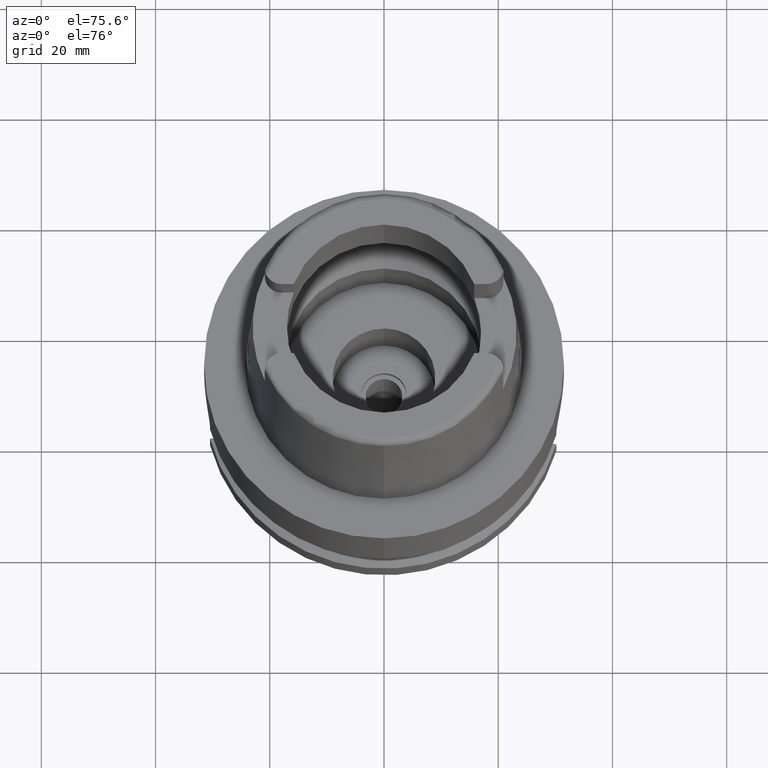
[diagram: clean part render]
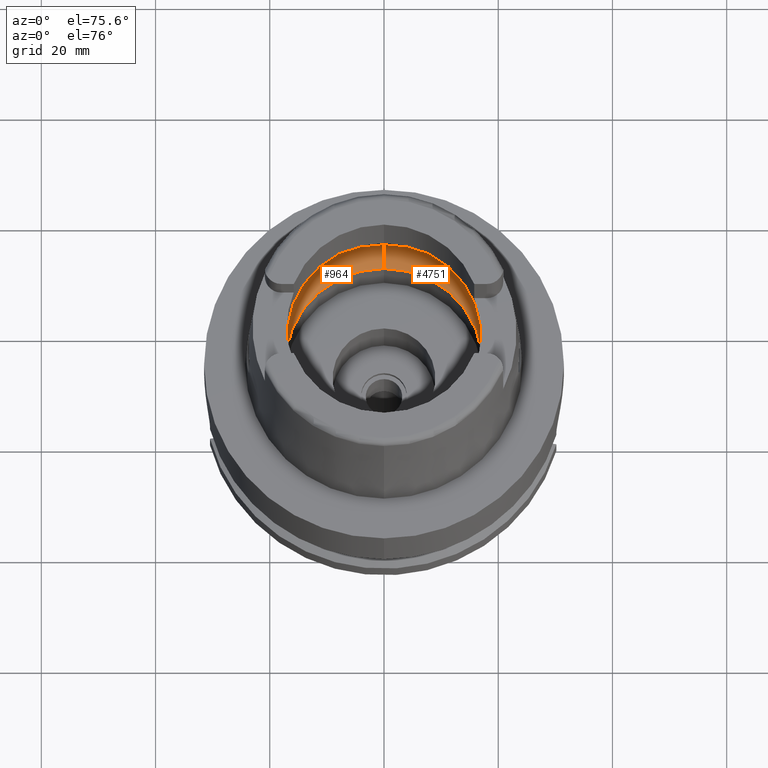
[diagram: same view with one multi-face feature highlighted, each face labeled with its STEP entity id]
A machine part, auxiliary view. The highlighted faces form ONE feature: a constant-radius fillet chain: 2 tangent blend faces with common blend radius 8 mm. The faces share edges in the B-rep.
Their STEP definitions:
[1] entity #4751 (Torus):
#158 = CARTESIAN_POINT ( 'NONE',  ( 19.88059069913697741, 2.158394907212094260, 5.925188472888706315 ) ) ;
#163 = DIRECTION ( 'NONE',  ( 0.0000000000000000000, -1.000000000000000000, 0.0000000000000000000 ) ) ;
#180 = CARTESIAN_POINT ( 'NONE',  ( 19.92591877051987836, -1.321591573237128836, 5.490590281197457401 ) ) ;
#312 = VERTEX_POINT ( 'NONE', #3746 ) ;
#391 = DIRECTION ( 'NONE',  ( 0.0000000000000000000, 0.0000000000000000000, -1.000000000000000000 ) ) ;
#467 = DIRECTION ( 'NONE',  ( 0.0000000000000000000, 0.6562500000000006661, -0.7545435292281016393 ) ) ;
#483 = DIRECTION ( 'NONE',  ( 0.0000000000000000000, 1.000000000000000000, 0.0000000000000000000 ) ) ;
#505 = AXIS2_PLACEMENT_3D ( 'NONE', #2756, #4456, #163 ) ;
#865 = EDGE_CURVE ( 'NONE', #1683, #3936, #3848, .T. ) ;
#933 = DIRECTION ( 'NONE',  ( 0.0000000000000000000, -1.000000000000000000, 0.0000000000000000000 ) ) ;
#955 = CARTESIAN_POINT ( 'NONE',  ( 19.91820208730433706, 1.528663205432394978, 5.574770377084123929 ) ) ;
#968 = B_SPLINE_CURVE_WITH_KNOTS ( 'NONE', 3,
 ( #1377, #3611, #158, #1436, #3989, #4817, #955, #3177, #4875, #2282, #1896, #1011, #2750, #4450, #3635 ),
 .UNSPECIFIED., .F., .F.,
 ( 4, 2, 2, 1, 1, 1, 2, 2, 4 ),
 ( 0.0000000000000000000, 0.2499999999999977796, 0.3749999999999970024, 0.4374999999999967248, 0.4687499999999964473, 0.4843749999999962252, 0.4921874999999961142, 0.4999999999999960032, 1.000000000000000000 ),
 .UNSPECIFIED. ) ;
#1011 = CARTESIAN_POINT ( 'NONE',  ( 19.92547292124043068, 1.334858430820499153, 5.495617893788070418 ) ) ;
#1059 = CARTESIAN_POINT ( 'NONE',  ( 19.93292615230356191, -1.081461345981616917, 5.408921120519437409 ) ) ;
#1094 = AXIS2_PLACEMENT_3D ( 'NONE', #2277, #3575, #467 ) ;
#1185 = VERTEX_POINT ( 'NONE', #3796 ) ;
#1307 = ORIENTED_EDGE ( 'NONE', *, *, #5604, .F. ) ;
#1323 = CARTESIAN_POINT ( 'NONE',  ( 19.84575864665999845, 2.479085262491000030, 6.186348233825000875 ) ) ;
#1370 = EDGE_CURVE ( 'NONE', #1683, #312, #1689, .T. ) ;
#1377 = CARTESIAN_POINT ( 'NONE',  ( 19.84575864665999845, 2.479085262491000030, 6.186348233825000875 ) ) ;
#1382 = CIRCLE ( 'NONE', #2841, 20.00000000000000000 ) ;
#1408 = AXIS2_PLACEMENT_3D ( 'NONE', #3971, #5176, #2262 ) ;
#1436 = CARTESIAN_POINT ( 'NONE',  ( 19.90056963212105856, 1.871013146672793503, 5.748159224275968704 ) ) ;
#1516 = CARTESIAN_POINT ( 'NONE',  ( 19.92706151929149172, -1.286760697311716051, 5.477637534686877530 ) ) ;
#1683 = VERTEX_POINT ( 'NONE', #3472 ) ;
#1689 = CIRCLE ( 'NONE', #505, 17.25000000000000000 ) ;
#1794 = DIRECTION ( 'NONE',  ( 0.0000000000000000000, 0.0000000000000000000, -1.000000000000000000 ) ) ;
#1856 = VERTEX_POINT ( 'NONE', #4431 ) ;
#1896 = CARTESIAN_POINT ( 'NONE',  ( 19.92518065070698441, 1.343443539030370948, 5.498897323770085777 ) ) ;
#2038 = EDGE_CURVE ( 'NONE', #1185, #3936, #2102, .T. ) ;
#2102 = CIRCLE ( 'NONE', #3367, 20.00000000000001421 ) ;
#2223 = CARTESIAN_POINT ( 'NONE',  ( 0.0000000000000000000, 0.0000000000000000000, 6.186348233825000875 ) ) ;
#2262 = DIRECTION ( 'NONE',  ( 0.0000000000000000000, -0.6562500000000006661, -0.7545435292281016393 ) ) ;
#2277 = CARTESIAN_POINT ( 'NONE',  ( 0.0000000000000000000, 12.00000000000000000, 6.186348233825000875 ) ) ;
#2282 = CARTESIAN_POINT ( 'NONE',  ( 19.92467892137705832, 1.357954799800392465, 5.504500142502393167 ) ) ;
#2312 = VERTEX_POINT ( 'NONE', #1323 ) ;
#2464 = CARTESIAN_POINT ( 'NONE',  ( 19.92840569443704624, -1.244197915450328651, 5.462253908760470011 ) ) ;
#2510 = ORIENTED_EDGE ( 'NONE', *, *, #865, .T. ) ;
#2619 = CARTESIAN_POINT ( 'NONE',  ( 0.0000000000000000000, 0.0000000000000000000, 6.186348233825000875 ) ) ;
#2750 = CARTESIAN_POINT ( 'NONE',  ( 19.93856764937210002, 0.9457748455385684982, 5.348171637975688064 ) ) ;
#2755 = ORIENTED_EDGE ( 'NONE', *, *, #2038, .F. ) ;
#2756 = CARTESIAN_POINT ( 'NONE',  ( 0.0000000000000000000, 0.0000000000000000000, 0.1500000000000999700 ) ) ;
#2764 = AXIS2_PLACEMENT_3D ( 'NONE', #4313, #391, #933 ) ;
#2828 = CARTESIAN_POINT ( 'NONE',  ( 19.94501428475999560, -0.2479294248916112386, 5.249999999999997335 ) ) ;
#2831 = CIRCLE ( 'NONE', #1094, 7.999999999999992895 ) ;
#2841 = AXIS2_PLACEMENT_3D ( 'NONE', #2619, #4315, #483 ) ;
#2973 = EDGE_CURVE ( 'NONE', #312, #2986, #2831, .T. ) ;
#2986 = VERTEX_POINT ( 'NONE', #5276 ) ;
#3097 = EDGE_CURVE ( 'NONE', #1856, #1185, #5534, .T. ) ;
#3177 = CARTESIAN_POINT ( 'NONE',  ( 19.92208759317466615, 1.429891859894064865, 5.533074159368561062 ) ) ;
#3226 = CARTESIAN_POINT ( 'NONE',  ( 19.94340253376580563, -0.4848958549396773510, 5.274596266894434393 ) ) ;
#3356 = ORIENTED_EDGE ( 'NONE', *, *, #3097, .F. ) ;
#3367 = AXIS2_PLACEMENT_3D ( 'NONE', #2223, #1794, #3523 ) ;
#3472 = CARTESIAN_POINT ( 'NONE',  ( 0.0000000000000000000, -17.25000000000000000, 0.1500000000000999700 ) ) ;
#3523 = DIRECTION ( 'NONE',  ( 0.9922879323327794543, -0.1239542631244973381, 0.0000000000000000000 ) ) ;
#3539 = EDGE_LOOP ( 'NONE', ( #1307, #4185, #4494, #4726, #2510, #2755, #3356 ) ) ;
#3575 = DIRECTION ( 'NONE',  ( 1.000000000000000000, 0.0000000000000000000, 0.0000000000000000000 ) ) ;
#3611 = CARTESIAN_POINT ( 'NONE',  ( 19.86454025209263818, 2.328733350789459422, 6.053874409961051306 ) ) ;
#3635 = CARTESIAN_POINT ( 'NONE',  ( 19.94501428475999916, 0.0000000000000000000, 5.250000000000000000 ) ) ;
#3661 = EDGE_CURVE ( 'NONE', #2986, #2312, #1382, .T. ) ;
#3703 = CARTESIAN_POINT ( 'NONE',  ( 19.92607463660266021, -1.316897531413870226, 5.488828948961343990 ) ) ;
#3731 = CARTESIAN_POINT ( 'NONE',  ( 19.92647127844888999, -1.304861539413693983, 5.484338238559522516 ) ) ;
#3746 = CARTESIAN_POINT ( 'NONE',  ( 0.0000000000000000000, 17.25000000000000000, 0.1500000000000999700 ) ) ;
#3796 = CARTESIAN_POINT ( 'NONE',  ( 19.84575864665999845, -2.479085262491000030, 6.186348233825000875 ) ) ;
#3839 = TOROIDAL_SURFACE ( 'NONE', #2764, 12.00000000000000000, 8.000000000000000000 ) ;
#3848 = CIRCLE ( 'NONE', #1408, 7.999999999999992895 ) ;
#3936 = VERTEX_POINT ( 'NONE', #4669 ) ;
#3971 = CARTESIAN_POINT ( 'NONE',  ( 0.0000000000000000000, -12.00000000000000000, 6.186348233825000875 ) ) ;
#3989 = CARTESIAN_POINT ( 'NONE',  ( 19.90654648685200812, 1.769930501895055741, 5.691839127009138188 ) ) ;
#4114 = CARTESIAN_POINT ( 'NONE',  ( 19.94501428475999916, 0.0000000000000000000, 5.250000000000000000 ) ) ;
#4185 = ORIENTED_EDGE ( 'NONE', *, *, #3661, .F. ) ;
#4313 = CARTESIAN_POINT ( 'NONE',  ( 0.0000000000000000000, 0.0000000000000000000, 6.186348233825000875 ) ) ;
#4315 = DIRECTION ( 'NONE',  ( 0.0000000000000000000, 0.0000000000000000000, -1.000000000000000000 ) ) ;
#4431 = CARTESIAN_POINT ( 'NONE',  ( 19.94501428475999916, 0.0000000000000000000, 5.250000000000000000 ) ) ;
#4450 = CARTESIAN_POINT ( 'NONE',  ( 19.94501428475999560, 0.4959066315522072665, 5.250000000000000000 ) ) ;
#4456 = DIRECTION ( 'NONE',  ( 0.0000000000000000000, 0.0000000000000000000, 1.000000000000000000 ) ) ;
#4494 = ORIENTED_EDGE ( 'NONE', *, *, #2973, .F. ) ;
#4497 = CARTESIAN_POINT ( 'NONE',  ( 19.84575864665999845, -2.479085262491000030, 6.186348233825000875 ) ) ;
#4576 = CARTESIAN_POINT ( 'NONE',  ( 19.88332321193473717, -2.178370596674401583, 5.921391032936415222 ) ) ;
#4669 = CARTESIAN_POINT ( 'NONE',  ( 0.0000000000000000000, -20.00000000000000000, 6.186348233825000875 ) ) ;
#4726 = ORIENTED_EDGE ( 'NONE', *, *, #1370, .F. ) ;
#4751 = ADVANCED_FACE ( 'NONE', ( #4766 ), #3839, .F. ) ;
#4766 = FACE_OUTER_BOUND ( 'NONE', #3539, .T. ) ;
#4817 = CARTESIAN_POINT ( 'NONE',  ( 19.91448758455282686, 1.610401092887198793, 5.612873060275235026 ) ) ;
#4875 = CARTESIAN_POINT ( 'NONE',  ( 19.92391832594157819, 1.379661882597366551, 5.512959091754375152 ) ) ;
#4925 = CARTESIAN_POINT ( 'NONE',  ( 19.93655259204049557, -0.9259503216094564504, 5.364516449229028261 ) ) ;
#5008 = CARTESIAN_POINT ( 'NONE',  ( 19.93856728078323215, -0.8184016997822980422, 5.338643298040043561 ) ) ;
#5176 = DIRECTION ( 'NONE',  ( -1.000000000000000000, 0.0000000000000000000, 0.0000000000000000000 ) ) ;
#5276 = CARTESIAN_POINT ( 'NONE',  ( 0.0000000000000000000, 20.00000000000000000, 6.186348233825000875 ) ) ;
#5358 = CARTESIAN_POINT ( 'NONE',  ( 19.90996142065797159, -1.795771334865874147, 5.670286579068238630 ) ) ;
#5440 = CARTESIAN_POINT ( 'NONE',  ( 19.93096183077939543, -1.157766814692000601, 5.432522770394612621 ) ) ;
#5534 = B_SPLINE_CURVE_WITH_KNOTS ( 'NONE', 3,
 ( #4114, #2828, #3226, #5008, #4925, #1059, #5440, #2464, #1516, #3731, #3703, #180, #5358, #4576, #4497 ),
 .UNSPECIFIED., .F., .F.,
 ( 4, 2, 2, 1, 1, 1, 2, 2, 4 ),
 ( 0.0000000000000000000, 0.2500000000000059952, 0.3750000000000089373, 0.4375000000000101585, 0.4687500000000107137, 0.4843750000000108247, 0.4921875000000108247, 0.5000000000000107692, 1.000000000000000000 ),
 .UNSPECIFIED. ) ;
#5604 = EDGE_CURVE ( 'NONE', #2312, #1856, #968, .T. ) ;
[2] entity #964 (Torus):
#25 = CARTESIAN_POINT ( 'NONE',  ( 0.0000000000000000000, 0.0000000000000000000, 6.186348233825000875 ) ) ;
#75 = CARTESIAN_POINT ( 'NONE',  ( -19.94501428475999916, 0.0000000000000000000, 5.250000000000000000 ) ) ;
#80 = DIRECTION ( 'NONE',  ( 0.0000000000000000000, 0.0000000000000000000, -1.000000000000000000 ) ) ;
#122 = ORIENTED_EDGE ( 'NONE', *, *, #1800, .F. ) ;
#312 = VERTEX_POINT ( 'NONE', #3746 ) ;
#369 = ORIENTED_EDGE ( 'NONE', *, *, #865, .F. ) ;
#467 = DIRECTION ( 'NONE',  ( 0.0000000000000000000, 0.6562500000000006661, -0.7545435292281016393 ) ) ;
#486 = ORIENTED_EDGE ( 'NONE', *, *, #3752, .F. ) ;
#533 = CIRCLE ( 'NONE', #704, 20.00000000000000000 ) ;
#573 = CARTESIAN_POINT ( 'NONE',  ( -19.94501428475999916, 0.0000000000000000000, 5.250000000000000000 ) ) ;
#601 = CARTESIAN_POINT ( 'NONE',  ( -19.92591893665111513, 1.321589401501888306, 5.490589463359009770 ) ) ;
#608 = ORIENTED_EDGE ( 'NONE', *, *, #2973, .T. ) ;
#627 = ORIENTED_EDGE ( 'NONE', *, *, #5404, .F. ) ;
#628 = CARTESIAN_POINT ( 'NONE',  ( -19.93655266502874568, 0.9259499426792057175, 5.364516364714714491 ) ) ;
#704 = AXIS2_PLACEMENT_3D ( 'NONE', #2217, #2665, #2250 ) ;
#859 = TOROIDAL_SURFACE ( 'NONE', #4030, 12.00000000000000000, 8.000000000000000000 ) ;
#865 = EDGE_CURVE ( 'NONE', #1683, #3936, #3848, .T. ) ;
#881 = DIRECTION ( 'NONE',  ( 0.0000000000000000000, 0.0000000000000000000, -1.000000000000000000 ) ) ;
#897 = CARTESIAN_POINT ( 'NONE',  ( -19.86454017786141080, -2.328733945067147371, 6.053874933574199702 ) ) ;
#964 = ADVANCED_FACE ( 'NONE', ( #3047 ), #859, .F. ) ;
#1005 = CARTESIAN_POINT ( 'NONE',  ( -19.84575864665999845, -2.479085262491000030, 6.186348233825000875 ) ) ;
#1094 = AXIS2_PLACEMENT_3D ( 'NONE', #2277, #3575, #467 ) ;
#1129 = VERTEX_POINT ( 'NONE', #2950 ) ;
#1292 = CARTESIAN_POINT ( 'NONE',  ( -19.94501428476000271, -0.4959057633453676228, 5.249999999999999112 ) ) ;
#1408 = AXIS2_PLACEMENT_3D ( 'NONE', #3971, #5176, #2262 ) ;
#1420 = B_SPLINE_CURVE_WITH_KNOTS ( 'NONE', 3,
 ( #2089, #897, #3877, #3037, #3793, #1670, #3402, #1728, #2638, #5505, #4332, #4699, #5068, #1292, #1640 ),
 .UNSPECIFIED., .F., .F.,
 ( 4, 2, 2, 1, 1, 1, 2, 2, 4 ),
 ( 0.0000000000000000000, 0.2499999999999978351, 0.3749999999999965583, 0.4374999999999957812, 0.4687499999999956701, 0.4843749999999953926, 0.4921874999999955036, 0.4999999999999956146, 1.000000000000000000 ),
 .UNSPECIFIED. ) ;
#1447 = DIRECTION ( 'NONE',  ( 0.0000000000000000000, 1.000000000000000000, 0.0000000000000000000 ) ) ;
#1640 = CARTESIAN_POINT ( 'NONE',  ( -19.94501428475999916, 0.0000000000000000000, 5.250000000000000000 ) ) ;
#1670 = CARTESIAN_POINT ( 'NONE',  ( -19.91448741099792841, -1.610403058979791080, 5.612873995741600730 ) ) ;
#1683 = VERTEX_POINT ( 'NONE', #3472 ) ;
#1707 = DIRECTION ( 'NONE',  ( -0.9922879323327794543, 0.1239542631244973381, 0.0000000000000000000 ) ) ;
#1728 = CARTESIAN_POINT ( 'NONE',  ( -19.92208742626170093, -1.429893919507462252, 5.533075008823881369 ) ) ;
#1800 = EDGE_CURVE ( 'NONE', #2542, #1129, #3638, .T. ) ;
#1934 = CARTESIAN_POINT ( 'NONE',  ( 0.0000000000000000000, 0.0000000000000000000, 0.1500000000000999700 ) ) ;
#1961 = DIRECTION ( 'NONE',  ( 0.0000000000000000000, 0.0000000000000000000, 1.000000000000000000 ) ) ;
#2089 = CARTESIAN_POINT ( 'NONE',  ( -19.84575864665999845, -2.479085262491000030, 6.186348233825000875 ) ) ;
#2217 = CARTESIAN_POINT ( 'NONE',  ( 0.0000000000000000000, 0.0000000000000000000, 6.186348233825000875 ) ) ;
#2220 = CIRCLE ( 'NONE', #3583, 20.00000000000001421 ) ;
#2250 = DIRECTION ( 'NONE',  ( 0.0000000000000000000, -1.000000000000000000, 0.0000000000000000000 ) ) ;
#2262 = DIRECTION ( 'NONE',  ( 0.0000000000000000000, -0.6562500000000006661, -0.7545435292281016393 ) ) ;
#2277 = CARTESIAN_POINT ( 'NONE',  ( 0.0000000000000000000, 12.00000000000000000, 6.186348233825000875 ) ) ;
#2351 = CARTESIAN_POINT ( 'NONE',  ( -19.92706167414715424, 1.286758763272738637, 5.477636828633105637 ) ) ;
#2356 = ORIENTED_EDGE ( 'NONE', *, *, #2391, .F. ) ;
#2376 = CARTESIAN_POINT ( 'NONE',  ( -19.92840583769821095, 1.244196210296658611, 5.462253310888492308 ) ) ;
#2391 = EDGE_CURVE ( 'NONE', #4335, #2542, #1420, .T. ) ;
#2403 = CARTESIAN_POINT ( 'NONE',  ( -19.93856733639333711, 0.8184016122554811368, 5.338643284459313243 ) ) ;
#2431 = CARTESIAN_POINT ( 'NONE',  ( -19.84575864665999845, 2.479085262491000030, 6.186348233825000875 ) ) ;
#2542 = VERTEX_POINT ( 'NONE', #75 ) ;
#2621 = DIRECTION ( 'NONE',  ( 0.0000000000000000000, -1.000000000000000000, 0.0000000000000000000 ) ) ;
#2638 = CARTESIAN_POINT ( 'NONE',  ( -19.92391816269978477, -1.379663951363984786, 5.512959910256965301 ) ) ;
#2665 = DIRECTION ( 'NONE',  ( 0.0000000000000000000, 0.0000000000000000000, -1.000000000000000000 ) ) ;
#2831 = CIRCLE ( 'NONE', #1094, 7.999999999999992895 ) ;
#2844 = CARTESIAN_POINT ( 'NONE',  ( -19.94340254766833098, 0.4848963393937152366, 5.274596353473683052 ) ) ;
#2950 = CARTESIAN_POINT ( 'NONE',  ( -19.84575864665999845, 2.479085262491000030, 6.186348233825000875 ) ) ;
#2973 = EDGE_CURVE ( 'NONE', #312, #2986, #2831, .T. ) ;
#2986 = VERTEX_POINT ( 'NONE', #5276 ) ;
#3037 = CARTESIAN_POINT ( 'NONE',  ( -19.90056946780158853, -1.871014814544017746, 5.748160190309610229 ) ) ;
#3047 = FACE_OUTER_BOUND ( 'NONE', #5488, .T. ) ;
#3188 = ORIENTED_EDGE ( 'NONE', *, *, #4783, .F. ) ;
#3189 = CARTESIAN_POINT ( 'NONE',  ( -19.88332336789530785, 2.178369348232300773, 5.921389932944421730 ) ) ;
#3402 = CARTESIAN_POINT ( 'NONE',  ( -19.91820191500729109, -1.528665229810445725, 5.574771280907597770 ) ) ;
#3472 = CARTESIAN_POINT ( 'NONE',  ( 0.0000000000000000000, -17.25000000000000000, 0.1500000000000999700 ) ) ;
#3575 = DIRECTION ( 'NONE',  ( 1.000000000000000000, 0.0000000000000000000, 0.0000000000000000000 ) ) ;
#3583 = AXIS2_PLACEMENT_3D ( 'NONE', #4287, #80, #1707 ) ;
#3638 = B_SPLINE_CURVE_WITH_KNOTS ( 'NONE', 3,
 ( #573, #3721, #2844, #2403, #628, #4860, #5349, #2376, #2351, #4968, #3696, #601, #4053, #3189, #2431 ),
 .UNSPECIFIED., .F., .F.,
 ( 4, 2, 2, 1, 1, 1, 2, 2, 4 ),
 ( 0.0000000000000000000, 0.2500000000000017764, 0.3750000000000026090, 0.4375000000000029976, 0.4687500000000033862, 0.4843750000000034417, 0.4921875000000032752, 0.5000000000000031086, 1.000000000000000000 ),
 .UNSPECIFIED. ) ;
#3696 = CARTESIAN_POINT ( 'NONE',  ( -19.92607479997091247, 1.316895428540626023, 5.488828160328669270 ) ) ;
#3721 = CARTESIAN_POINT ( 'NONE',  ( -19.94501428476000626, 0.2479298819745013871, 5.250000000000000000 ) ) ;
#3746 = CARTESIAN_POINT ( 'NONE',  ( 0.0000000000000000000, 17.25000000000000000, 0.1500000000000999700 ) ) ;
#3752 = EDGE_CURVE ( 'NONE', #312, #1683, #4805, .T. ) ;
#3793 = CARTESIAN_POINT ( 'NONE',  ( -19.90654631525750418, -1.769932316793550120, 5.691840100849177908 ) ) ;
#3848 = CIRCLE ( 'NONE', #1408, 7.999999999999992895 ) ;
#3877 = CARTESIAN_POINT ( 'NONE',  ( -19.88059057454697864, -2.158396021161181011, 5.925189281865103297 ) ) ;
#3936 = VERTEX_POINT ( 'NONE', #4669 ) ;
#3971 = CARTESIAN_POINT ( 'NONE',  ( 0.0000000000000000000, -12.00000000000000000, 6.186348233825000875 ) ) ;
#4030 = AXIS2_PLACEMENT_3D ( 'NONE', #25, #881, #2621 ) ;
#4053 = CARTESIAN_POINT ( 'NONE',  ( -19.90996163222863657, 1.795769164608234325, 5.670285425949863622 ) ) ;
#4287 = CARTESIAN_POINT ( 'NONE',  ( 0.0000000000000000000, 0.0000000000000000000, 6.186348233825000875 ) ) ;
#4332 = CARTESIAN_POINT ( 'NONE',  ( -19.92518049048375417, -1.343445610852842087, 5.498898118767965748 ) ) ;
#4335 = VERTEX_POINT ( 'NONE', #1005 ) ;
#4669 = CARTESIAN_POINT ( 'NONE',  ( 0.0000000000000000000, -20.00000000000000000, 6.186348233825000875 ) ) ;
#4699 = CARTESIAN_POINT ( 'NONE',  ( -19.92547276066717643, -1.334860535928066305, 5.495618695580920310 ) ) ;
#4783 = EDGE_CURVE ( 'NONE', #1129, #2986, #2220, .T. ) ;
#4805 = CIRCLE ( 'NONE', #5071, 17.25000000000000000 ) ;
#4860 = CARTESIAN_POINT ( 'NONE',  ( -19.93292625657251094, 1.081460392893327738, 5.408920836531628140 ) ) ;
#4968 = CARTESIAN_POINT ( 'NONE',  ( -19.92647143839581503, 1.304859504448080854, 5.484337483337790253 ) ) ;
#5068 = CARTESIAN_POINT ( 'NONE',  ( -19.93856759639948351, -0.9457748101883168834, 5.348171365684883938 ) ) ;
#5071 = AXIS2_PLACEMENT_3D ( 'NONE', #1934, #1961, #1447 ) ;
#5176 = DIRECTION ( 'NONE',  ( -1.000000000000000000, 0.0000000000000000000, 0.0000000000000000000 ) ) ;
#5276 = CARTESIAN_POINT ( 'NONE',  ( 0.0000000000000000000, 20.00000000000000000, 6.186348233825000875 ) ) ;
#5349 = CARTESIAN_POINT ( 'NONE',  ( -19.93096195199203535, 1.157765540344597888, 5.432522363496016915 ) ) ;
#5404 = EDGE_CURVE ( 'NONE', #3936, #4335, #533, .T. ) ;
#5488 = EDGE_LOOP ( 'NONE', ( #627, #369, #486, #608, #3188, #122, #2356 ) ) ;
#5505 = CARTESIAN_POINT ( 'NONE',  ( -19.92467875991843229, -1.357956870647915704, 5.504500946996784272 ) ) ;